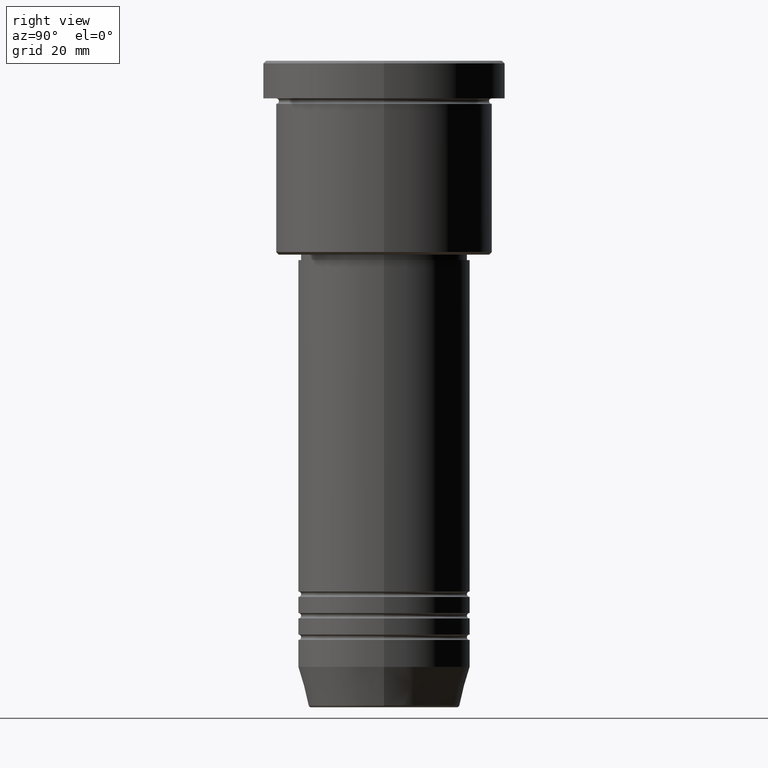
[diagram: clean part render]
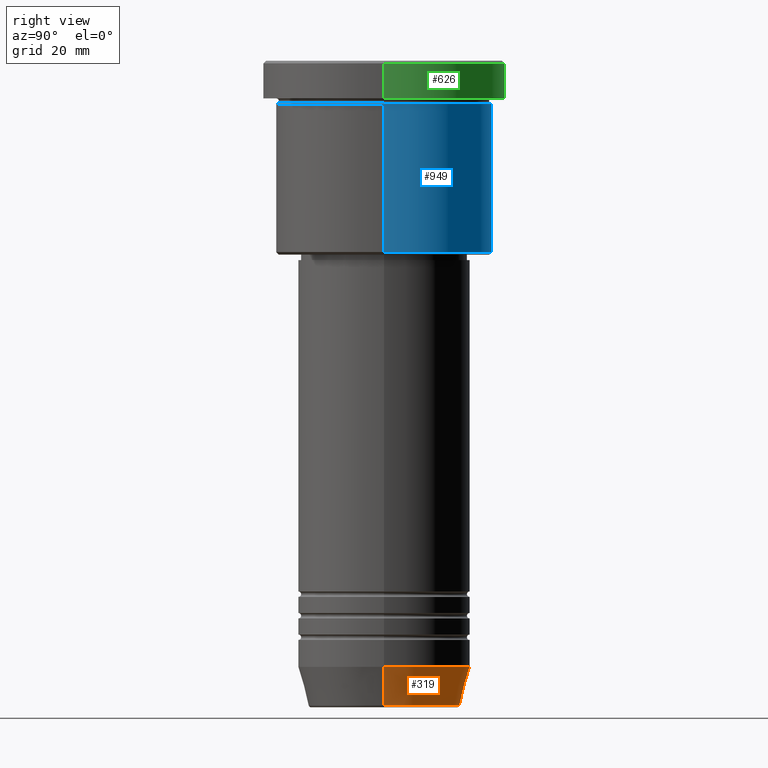
[diagram: same view with three faces highlighted in distinct colors, each labeled with its STEP entity id]
A machine part, right view with three faces highlighted in distinct colors.
Their STEP definitions:

[orange] entity #319 — the highlighted conical surface has half-angle 15 deg.
#24 = CARTESIAN_POINT ( 'NONE',  ( 0.000000000000000000, 0.000000000000000000, -112.4999999999999858 ) ) ;
#29 = LINE ( 'NONE', #393, #1082 ) ;
#31 = CIRCLE ( 'NONE', #959, 16.00000000000000000 ) ;
#53 = ORIENTED_EDGE ( 'NONE', *, *, #622, .T. ) ;
#94 = LINE ( 'NONE', #992, #236 ) ;
#177 = CARTESIAN_POINT ( 'NONE',  ( -14.08968047592162698, 1.842461544110201269E-15, -119.6294095225512564 ) ) ;
#236 = VECTOR ( 'NONE', #921, 1000.000000000000000 ) ;
#264 = CARTESIAN_POINT ( 'NONE',  ( -16.00000000000000000, 1.959434878635765131E-15, -112.4999999999999858 ) ) ;
#286 = CARTESIAN_POINT ( 'NONE',  ( 16.00000000000000000, 0.000000000000000000, -112.4999999999999858 ) ) ;
#292 = EDGE_CURVE ( 'NONE', #320, #927, #31, .T. ) ;
#319 = ADVANCED_FACE ( 'NONE', ( #517 ), #671, .T. ) ;
#320 = VERTEX_POINT ( 'NONE', #286 ) ;
#346 = DIRECTION ( 'NONE',  ( 1.000000000000000000, 0.000000000000000000, 0.000000000000000000 ) ) ;
#393 = CARTESIAN_POINT ( 'NONE',  ( 16.00000000000000000, 0.000000000000000000, -112.4999999999999858 ) ) ;
#418 = CARTESIAN_POINT ( 'NONE',  ( 0.000000000000000000, 0.000000000000000000, -112.4999999999999858 ) ) ;
#448 = VERTEX_POINT ( 'NONE', #1129 ) ;
#463 = DIRECTION ( 'NONE',  ( -0.000000000000000000, -0.000000000000000000, 1.000000000000000000 ) ) ;
#470 = DIRECTION ( 'NONE',  ( 1.000000000000000000, 0.000000000000000000, 0.000000000000000000 ) ) ;
#517 = FACE_OUTER_BOUND ( 'NONE', #631, .T. ) ;
#534 = EDGE_CURVE ( 'NONE', #682, #927, #94, .T. ) ;
#539 = AXIS2_PLACEMENT_3D ( 'NONE', #24, #751, #828 ) ;
#551 = ORIENTED_EDGE ( 'NONE', *, *, #292, .F. ) ;
#622 = EDGE_CURVE ( 'NONE', #448, #682, #902, .T. ) ;
#631 = EDGE_LOOP ( 'NONE', ( #53, #733, #551, #867 ) ) ;
#662 = DIRECTION ( 'NONE',  ( 0.2588190451025213501, 0.000000000000000000, 0.9659258262890680902 ) ) ;
#671 = CONICAL_SURFACE ( 'NONE', #539, 16.00000000000000000, 0.2617993877991500740 ) ;
#682 = VERTEX_POINT ( 'NONE', #177 ) ;
#733 = ORIENTED_EDGE ( 'NONE', *, *, #534, .T. ) ;
#738 = CARTESIAN_POINT ( 'NONE',  ( 0.000000000000000000, 0.000000000000000000, -119.6294095225512564 ) ) ;
#751 = DIRECTION ( 'NONE',  ( -0.000000000000000000, -0.000000000000000000, 1.000000000000000000 ) ) ;
#828 = DIRECTION ( 'NONE',  ( 1.000000000000000000, 0.000000000000000000, 0.000000000000000000 ) ) ;
#867 = ORIENTED_EDGE ( 'NONE', *, *, #1051, .F. ) ;
#891 = DIRECTION ( 'NONE',  ( -0.000000000000000000, -0.000000000000000000, 1.000000000000000000 ) ) ;
#902 = CIRCLE ( 'NONE', #1061, 14.08968047592162698 ) ;
#921 = DIRECTION ( 'NONE',  ( -0.2588190451025213501, 3.169619151431772337E-17, 0.9659258262890680902 ) ) ;
#927 = VERTEX_POINT ( 'NONE', #264 ) ;
#959 = AXIS2_PLACEMENT_3D ( 'NONE', #418, #891, #346 ) ;
#992 = CARTESIAN_POINT ( 'NONE',  ( -16.00000000000000000, 1.959434878635765131E-15, -112.4999999999999858 ) ) ;
#1051 = EDGE_CURVE ( 'NONE', #448, #320, #29, .T. ) ;
#1061 = AXIS2_PLACEMENT_3D ( 'NONE', #738, #463, #470 ) ;
#1082 = VECTOR ( 'NONE', #662, 1000.000000000000000 ) ;
#1129 = CARTESIAN_POINT ( 'NONE',  ( 14.08968047592162698, 0.000000000000000000, -119.6294095225512564 ) ) ;

[blue] entity #949 — the highlighted cylindrical surface (partial cylindrical patch) has radius 20 mm, axis along (-0, -0, 1).
#15 = CARTESIAN_POINT ( 'NONE',  ( 0.000000000000000000, 0.000000000000000000, 0.000000000000000000 ) ) ;
#16 = VERTEX_POINT ( 'NONE', #1168 ) ;
#74 = CARTESIAN_POINT ( 'NONE',  ( 20.00000000000000355, 0.000000000000000000, -35.49999999999997868 ) ) ;
#77 = DIRECTION ( 'NONE',  ( -0.000000000000000000, -0.000000000000000000, 1.000000000000000000 ) ) ;
#82 = CYLINDRICAL_SURFACE ( 'NONE', #563, 20.00000000000000355 ) ;
#92 = DIRECTION ( 'NONE',  ( -0.000000000000000000, -0.000000000000000000, 1.000000000000000000 ) ) ;
#117 = DIRECTION ( 'NONE',  ( -0.000000000000000000, -0.000000000000000000, 1.000000000000000000 ) ) ;
#133 = ORIENTED_EDGE ( 'NONE', *, *, #1132, .F. ) ;
#134 = VERTEX_POINT ( 'NONE', #731 ) ;
#169 = CARTESIAN_POINT ( 'NONE',  ( 0.000000000000000000, 0.000000000000000000, -35.49999999999997868 ) ) ;
#175 = LINE ( 'NONE', #536, #1024 ) ;
#193 = LINE ( 'NONE', #553, #406 ) ;
#261 = DIRECTION ( 'NONE',  ( 1.000000000000000000, 0.000000000000000000, 0.000000000000000000 ) ) ;
#274 = ORIENTED_EDGE ( 'NONE', *, *, #435, .T. ) ;
#277 = DIRECTION ( 'NONE',  ( -0.000000000000000000, -0.000000000000000000, 1.000000000000000000 ) ) ;
#284 = ORIENTED_EDGE ( 'NONE', *, *, #1022, .T. ) ;
#379 = CARTESIAN_POINT ( 'NONE',  ( 0.000000000000000000, 0.000000000000000000, -7.999999999999994671 ) ) ;
#397 = VERTEX_POINT ( 'NONE', #770 ) ;
#406 = VECTOR ( 'NONE', #803, 1000.000000000000000 ) ;
#435 = EDGE_CURVE ( 'NONE', #1034, #16, #935, .T. ) ;
#469 = AXIS2_PLACEMENT_3D ( 'NONE', #379, #117, #756 ) ;
#502 = AXIS2_PLACEMENT_3D ( 'NONE', #169, #77, #971 ) ;
#536 = CARTESIAN_POINT ( 'NONE',  ( 20.00000000000000355, 0.000000000000000000, 0.000000000000000000 ) ) ;
#553 = CARTESIAN_POINT ( 'NONE',  ( -20.00000000000000355, 2.449293598294706907E-15, 0.000000000000000000 ) ) ;
#563 = AXIS2_PLACEMENT_3D ( 'NONE', #15, #277, #261 ) ;
#731 = CARTESIAN_POINT ( 'NONE',  ( -20.00000000000000000, 2.449293598294706513E-15, -7.999999999999994671 ) ) ;
#756 = DIRECTION ( 'NONE',  ( 1.000000000000000000, 0.000000000000000000, 0.000000000000000000 ) ) ;
#770 = CARTESIAN_POINT ( 'NONE',  ( 20.00000000000000000, 0.000000000000000000, -7.999999999999994671 ) ) ;
#792 = ORIENTED_EDGE ( 'NONE', *, *, #913, .F. ) ;
#803 = DIRECTION ( 'NONE',  ( -0.000000000000000000, -0.000000000000000000, 1.000000000000000000 ) ) ;
#913 = EDGE_CURVE ( 'NONE', #1034, #397, #175, .T. ) ;
#935 = CIRCLE ( 'NONE', #502, 20.00000000000000355 ) ;
#949 = ADVANCED_FACE ( 'NONE', ( #1104 ), #82, .T. ) ;
#971 = DIRECTION ( 'NONE',  ( -1.000000000000000000, 0.000000000000000000, 0.000000000000000000 ) ) ;
#984 = CIRCLE ( 'NONE', #469, 20.00000000000000000 ) ;
#1022 = EDGE_CURVE ( 'NONE', #16, #134, #193, .T. ) ;
#1024 = VECTOR ( 'NONE', #92, 1000.000000000000000 ) ;
#1034 = VERTEX_POINT ( 'NONE', #74 ) ;
#1088 = EDGE_LOOP ( 'NONE', ( #274, #284, #133, #792 ) ) ;
#1104 = FACE_OUTER_BOUND ( 'NONE', #1088, .T. ) ;
#1132 = EDGE_CURVE ( 'NONE', #397, #134, #984, .T. ) ;
#1168 = CARTESIAN_POINT ( 'NONE',  ( -20.00000000000000355, 2.449293598294706907E-15, -35.49999999999997868 ) ) ;

[green] entity #626 — the highlighted cylindrical surface (partial cylindrical patch) has radius 22.5 mm, axis along (-0, -0, 1).
#13 = DIRECTION ( 'NONE',  ( 1.000000000000000000, 0.000000000000000000, 0.000000000000000000 ) ) ;
#28 = CYLINDRICAL_SURFACE ( 'NONE', #693, 22.50000000000000000 ) ;
#35 = VECTOR ( 'NONE', #512, 1000.000000000000000 ) ;
#90 = CIRCLE ( 'NONE', #802, 22.50000000000000000 ) ;
#95 = FACE_OUTER_BOUND ( 'NONE', #988, .T. ) ;
#127 = CARTESIAN_POINT ( 'NONE',  ( 0.000000000000000000, 0.000000000000000000, -0.4999999999999796274 ) ) ;
#141 = CARTESIAN_POINT ( 'NONE',  ( -22.50000000000000000, 2.755455298081544778E-15, 0.000000000000000000 ) ) ;
#148 = VECTOR ( 'NONE', #834, 1000.000000000000000 ) ;
#155 = VERTEX_POINT ( 'NONE', #265 ) ;
#199 = CARTESIAN_POINT ( 'NONE',  ( -22.50000000000000000, 2.755455298081544778E-15, -6.999999999999995559 ) ) ;
#265 = CARTESIAN_POINT ( 'NONE',  ( 22.50000000000000000, 0.000000000000000000, -6.999999999999995559 ) ) ;
#287 = DIRECTION ( 'NONE',  ( 1.000000000000000000, 0.000000000000000000, 0.000000000000000000 ) ) ;
#298 = DIRECTION ( 'NONE',  ( -0.000000000000000000, -0.000000000000000000, 1.000000000000000000 ) ) ;
#335 = CARTESIAN_POINT ( 'NONE',  ( 22.50000000000000000, 0.000000000000000000, -0.4999999999999796274 ) ) ;
#420 = ORIENTED_EDGE ( 'NONE', *, *, #814, .T. ) ;
#433 = VERTEX_POINT ( 'NONE', #985 ) ;
#482 = AXIS2_PLACEMENT_3D ( 'NONE', #127, #489, #532 ) ;
#489 = DIRECTION ( 'NONE',  ( 0.000000000000000000, 0.000000000000000000, -1.000000000000000000 ) ) ;
#490 = LINE ( 'NONE', #930, #148 ) ;
#512 = DIRECTION ( 'NONE',  ( -0.000000000000000000, -0.000000000000000000, 1.000000000000000000 ) ) ;
#527 = ORIENTED_EDGE ( 'NONE', *, *, #1124, .F. ) ;
#532 = DIRECTION ( 'NONE',  ( 1.000000000000000000, 0.000000000000000000, 0.000000000000000000 ) ) ;
#626 = ADVANCED_FACE ( 'NONE', ( #95 ), #28, .T. ) ;
#642 = VERTEX_POINT ( 'NONE', #199 ) ;
#650 = EDGE_CURVE ( 'NONE', #433, #830, #999, .T. ) ;
#693 = AXIS2_PLACEMENT_3D ( 'NONE', #745, #1017, #13 ) ;
#745 = CARTESIAN_POINT ( 'NONE',  ( 0.000000000000000000, 0.000000000000000000, 0.000000000000000000 ) ) ;
#759 = ORIENTED_EDGE ( 'NONE', *, *, #650, .T. ) ;
#802 = AXIS2_PLACEMENT_3D ( 'NONE', #1127, #298, #287 ) ;
#814 = EDGE_CURVE ( 'NONE', #642, #433, #1073, .T. ) ;
#830 = VERTEX_POINT ( 'NONE', #335 ) ;
#834 = DIRECTION ( 'NONE',  ( -0.000000000000000000, -0.000000000000000000, 1.000000000000000000 ) ) ;
#930 = CARTESIAN_POINT ( 'NONE',  ( 22.50000000000000000, 0.000000000000000000, 0.000000000000000000 ) ) ;
#985 = CARTESIAN_POINT ( 'NONE',  ( -22.50000000000000000, 2.755455298081544778E-15, -0.4999999999999796274 ) ) ;
#988 = EDGE_LOOP ( 'NONE', ( #1052, #420, #759, #527 ) ) ;
#999 = CIRCLE ( 'NONE', #482, 22.50000000000000000 ) ;
#1017 = DIRECTION ( 'NONE',  ( -0.000000000000000000, -0.000000000000000000, 1.000000000000000000 ) ) ;
#1052 = ORIENTED_EDGE ( 'NONE', *, *, #1144, .T. ) ;
#1073 = LINE ( 'NONE', #141, #35 ) ;
#1124 = EDGE_CURVE ( 'NONE', #155, #830, #490, .T. ) ;
#1127 = CARTESIAN_POINT ( 'NONE',  ( 0.000000000000000000, 0.000000000000000000, -6.999999999999995559 ) ) ;
#1144 = EDGE_CURVE ( 'NONE', #155, #642, #90, .T. ) ;